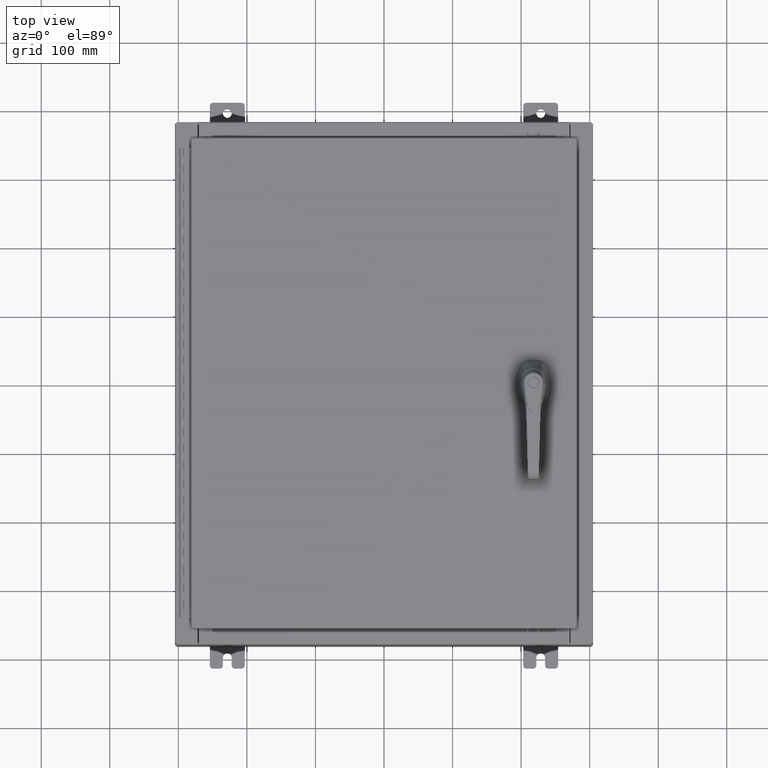
[diagram: clean part render]
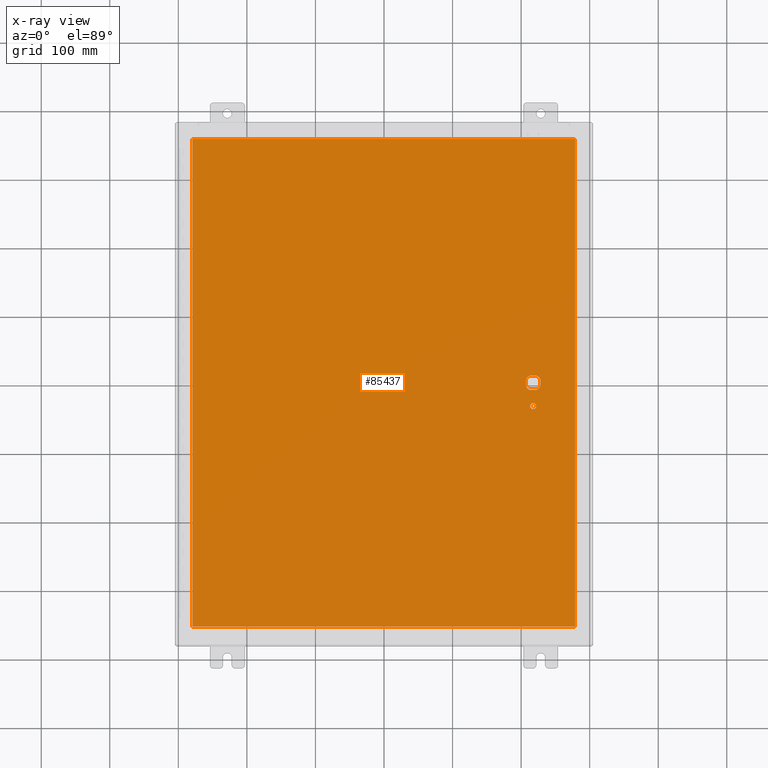
[diagram: x-ray — body ghosted, one internal face saturated and labeled with its STEP entity id]
A machine part, top view, then the same camera in x-ray: the body is ghosted and one INTERNAL B-rep face — a face not visible from any outside direction — is saturated and labeled: STEP entity #85437.
In plain terms, the highlighted planar face has unit normal (0, 0, -1).
Its self-contained STEP definition (entity closure, byte-faithful):
#2277 = VERTEX_POINT ( 'NONE', #56101 ) ;
#3401 = CARTESIAN_POINT ( 'NONE',  ( 8.749500000000001200, -1.338000000000000100, -0.07470000000000003000 ) ) ;
#3745 = EDGE_CURVE ( 'NONE', #12267, #58571, #61954, .T. ) ;
#4332 = ORIENTED_EDGE ( 'NONE', *, *, #52031, .T. ) ;
#5399 = ORIENTED_EDGE ( 'NONE', *, *, #103116, .T. ) ;
#5454 = DIRECTION ( 'NONE',  ( -1.000000000000000000, 0.0000000000000000000, 0.0000000000000000000 ) ) ;
#5719 = LINE ( 'NONE', #108214, #27217 ) ;
#5802 = ORIENTED_EDGE ( 'NONE', *, *, #69945, .F. ) ;
#6879 = DIRECTION ( 'NONE',  ( -1.000000000000000000, 0.0000000000000000000, 0.0000000000000000000 ) ) ;
#7244 = CARTESIAN_POINT ( 'NONE',  ( 10.99030000000000000, 14.00629999999999800, -0.07470000000000000300 ) ) ;
#9408 = CARTESIAN_POINT ( 'NONE',  ( 8.175000000000073500, 0.2002273707563080300, -0.07470000000000003000 ) ) ;
#11026 = CARTESIAN_POINT ( 'NONE',  ( 8.778227370756310300, -0.4029999999999252000, -0.07470000000000003000 ) ) ;
#12267 = VERTEX_POINT ( 'NONE', #7244 ) ;
#13652 = CIRCLE ( 'NONE', #31750, 0.4499999999999156900 ) ;
#16872 = CARTESIAN_POINT ( 'NONE',  ( 8.577999999999999400, -1.338000000000000100, -0.07470000000000003000 ) ) ;
#19948 = CARTESIAN_POINT ( 'NONE',  ( 10.99030000000000000, 14.00629999999999800, -0.07470000000000019700 ) ) ;
#19972 = VERTEX_POINT ( 'NONE', #101440 ) ;
#21178 = ORIENTED_EDGE ( 'NONE', *, *, #101993, .T. ) ;
#21902 = AXIS2_PLACEMENT_3D ( 'NONE', #29216, #93185, #38366 ) ;
#23083 = CARTESIAN_POINT ( 'NONE',  ( -10.99030000000000000, -14.00629999999999600, -0.07470000000000000300 ) ) ;
#25324 = CARTESIAN_POINT ( 'NONE',  ( -10.99029999999999600, -14.00629999999999800, -0.07470000000000019700 ) ) ;
#25375 = EDGE_LOOP ( 'NONE', ( #105711, #87907 ) ) ;
#25631 = CARTESIAN_POINT ( 'NONE',  ( 8.577999999999999400, 0.0000000000000000000, -0.07470000000000003000 ) ) ;
#25850 = AXIS2_PLACEMENT_3D ( 'NONE', #116488, #61571, #6879 ) ;
#26058 = DIRECTION ( 'NONE',  ( -1.000000000000000000, 0.0000000000000000000, 0.0000000000000000000 ) ) ;
#27217 = VECTOR ( 'NONE', #44517, 39.37007874015748100 ) ;
#27899 = VERTEX_POINT ( 'NONE', #9408 ) ;
#29216 = CARTESIAN_POINT ( 'NONE',  ( 8.577999999999999400, 0.0000000000000000000, -0.07470000000000003000 ) ) ;
#30165 = CARTESIAN_POINT ( 'NONE',  ( 8.980999999999925300, 2.450686610769032800E-014, -0.07470000000000003000 ) ) ;
#31529 = ORIENTED_EDGE ( 'NONE', *, *, #35678, .T. ) ;
#31750 = AXIS2_PLACEMENT_3D ( 'NONE', #25631, #89579, #34784 ) ;
#32432 = EDGE_CURVE ( 'NONE', #109739, #88998, #101569, .T. ) ;
#33659 = ORIENTED_EDGE ( 'NONE', *, *, #3745, .F. ) ;
#34560 = CARTESIAN_POINT ( 'NONE',  ( 8.577999999999999400, 0.0000000000000000000, -0.07470000000000003000 ) ) ;
#34784 = DIRECTION ( 'NONE',  ( -1.000000000000000000, 1.776356839400251300E-015, 0.0000000000000000000 ) ) ;
#35678 = EDGE_CURVE ( 'NONE', #115140, #64127, #94003, .T. ) ;
#35860 = VERTEX_POINT ( 'NONE', #117476 ) ;
#36461 = ORIENTED_EDGE ( 'NONE', *, *, #89222, .F. ) ;
#38366 = DIRECTION ( 'NONE',  ( -1.000000000000000000, 8.881784197001256300E-016, 0.0000000000000000000 ) ) ;
#38738 = CIRCLE ( 'NONE', #21902, 0.4499999999999156900 ) ;
#40222 = LINE ( 'NONE', #48954, #61649 ) ;
#41843 = CARTESIAN_POINT ( 'NONE',  ( 0.0000000000000000000, 0.4029999999999252000, -0.07470000000000003000 ) ) ;
#42219 = LINE ( 'NONE', #98125, #63644 ) ;
#43678 = ORIENTED_EDGE ( 'NONE', *, *, #80973, .T. ) ;
#43716 = DIRECTION ( 'NONE',  ( -1.000000000000000000, 0.0000000000000000000, 0.0000000000000000000 ) ) ;
#44517 = DIRECTION ( 'NONE',  ( 1.000000000000000000, 0.0000000000000000000, 0.0000000000000000000 ) ) ;
#44654 = EDGE_CURVE ( 'NONE', #82793, #35860, #13652, .T. ) ;
#47422 = DIRECTION ( 'NONE',  ( -1.000000000000000000, -0.0000000000000000000, -0.0000000000000000000 ) ) ;
#47454 = CARTESIAN_POINT ( 'NONE',  ( 8.778227370756310300, 0.4029999999999250300, -0.07470000000000003000 ) ) ;
#48954 = CARTESIAN_POINT ( 'NONE',  ( 8.175000000000073500, 0.0000000000000000000, -0.07470000000000003000 ) ) ;
#49635 = FACE_OUTER_BOUND ( 'NONE', #88080, .T. ) ;
#51408 = PLANE ( 'NONE',  #106821 ) ;
#52031 = EDGE_CURVE ( 'NONE', #2277, #115140, #54540, .T. ) ;
#54540 = CIRCLE ( 'NONE', #55908, 0.4499999999999156900 ) ;
#54885 = VECTOR ( 'NONE', #47422, 39.37007874015748100 ) ;
#55405 = FACE_BOUND ( 'NONE', #115377, .T. ) ;
#55908 = AXIS2_PLACEMENT_3D ( 'NONE', #34560, #98570, #43716 ) ;
#56101 = CARTESIAN_POINT ( 'NONE',  ( 8.980999999999925300, 0.2002273707563080300, -0.07470000000000003000 ) ) ;
#56416 = VECTOR ( 'NONE', #107695, 39.37007874015748100 ) ;
#57759 = CARTESIAN_POINT ( 'NONE',  ( 8.406499999999999400, -1.338000000000000100, -0.07470000000000003000 ) ) ;
#58141 = DIRECTION ( 'NONE',  ( 0.0000000000000000000, -1.000000000000000000, 0.0000000000000000000 ) ) ;
#58571 = VERTEX_POINT ( 'NONE', #96648 ) ;
#60173 = DIRECTION ( 'NONE',  ( -0.0000000000000000000, -0.0000000000000000000, 1.000000000000000000 ) ) ;
#61571 = DIRECTION ( 'NONE',  ( -0.0000000000000000000, -0.0000000000000000000, 1.000000000000000000 ) ) ;
#61649 = VECTOR ( 'NONE', #58141, 39.37007874015748100 ) ;
#61846 = DIRECTION ( 'NONE',  ( -1.000000000000000000, 0.0000000000000000000, -0.0000000000000000000 ) ) ;
#61954 = LINE ( 'NONE', #19948, #54885 ) ;
#63644 = VECTOR ( 'NONE', #107346, 39.37007874015748100 ) ;
#64127 = VERTEX_POINT ( 'NONE', #89343 ) ;
#67120 = AXIS2_PLACEMENT_3D ( 'NONE', #16872, #80818, #26058 ) ;
#69597 = VECTOR ( 'NONE', #115515, 39.37007874015748100 ) ;
#69826 = CARTESIAN_POINT ( 'NONE',  ( 8.377772629243690300, -0.4029999999999250300, -0.07470000000000003000 ) ) ;
#69945 = EDGE_CURVE ( 'NONE', #72745, #79838, #80804, .T. ) ;
#72745 = VERTEX_POINT ( 'NONE', #23083 ) ;
#72854 = VECTOR ( 'NONE', #113563, 39.37007874015748100 ) ;
#74000 = FACE_BOUND ( 'NONE', #25375, .T. ) ;
#75442 = EDGE_CURVE ( 'NONE', #88998, #109739, #114471, .T. ) ;
#75781 = EDGE_CURVE ( 'NONE', #79838, #12267, #97230, .T. ) ;
#78060 = ORIENTED_EDGE ( 'NONE', *, *, #44654, .T. ) ;
#78352 = EDGE_CURVE ( 'NONE', #64127, #27899, #101396, .T. ) ;
#79542 = VECTOR ( 'NONE', #93349, 39.37007874015748100 ) ;
#79838 = VERTEX_POINT ( 'NONE', #98269 ) ;
#80804 = LINE ( 'NONE', #25324, #56416 ) ;
#80818 = DIRECTION ( 'NONE',  ( -0.0000000000000000000, -0.0000000000000000000, 1.000000000000000000 ) ) ;
#80973 = EDGE_CURVE ( 'NONE', #27899, #19972, #40222, .T. ) ;
#81933 = AXIS2_PLACEMENT_3D ( 'NONE', #115066, #60173, #5454 ) ;
#82793 = VERTEX_POINT ( 'NONE', #11026 ) ;
#83908 = ORIENTED_EDGE ( 'NONE', *, *, #86980, .F. ) ;
#85437 = ADVANCED_FACE ( 'NONE', ( #74000, #49635, #55405 ), #51408, .T. ) ;
#86980 = EDGE_CURVE ( 'NONE', #2277, #35860, #106770, .T. ) ;
#87907 = ORIENTED_EDGE ( 'NONE', *, *, #32432, .T. ) ;
#88080 = EDGE_LOOP ( 'NONE', ( #118098, #5802, #36461, #33659 ) ) ;
#88998 = VERTEX_POINT ( 'NONE', #3401 ) ;
#89222 = EDGE_CURVE ( 'NONE', #58571, #72745, #42219, .T. ) ;
#89343 = CARTESIAN_POINT ( 'NONE',  ( 8.377772629243690300, 0.4029999999999252000, -0.07470000000000003000 ) ) ;
#89579 = DIRECTION ( 'NONE',  ( -0.0000000000000000000, -0.0000000000000000000, 1.000000000000000000 ) ) ;
#93185 = DIRECTION ( 'NONE',  ( -0.0000000000000000000, -0.0000000000000000000, 1.000000000000000000 ) ) ;
#93349 = DIRECTION ( 'NONE',  ( 2.728745808672812900E-015, -1.000000000000000000, 0.0000000000000000000 ) ) ;
#94003 = LINE ( 'NONE', #41843, #69597 ) ;
#96648 = CARTESIAN_POINT ( 'NONE',  ( -10.99030000000000000, 14.00629999999999800, -0.07470000000000000300 ) ) ;
#97230 = LINE ( 'NONE', #104351, #72854 ) ;
#98125 = CARTESIAN_POINT ( 'NONE',  ( -10.99030000000000000, 14.00630000000000100, -0.07470000000000019700 ) ) ;
#98269 = CARTESIAN_POINT ( 'NONE',  ( 10.99030000000000000, -14.00629999999999800, -0.07470000000000000300 ) ) ;
#98323 = CARTESIAN_POINT ( 'NONE',  ( 0.0000000000000000000, 0.0000000000000000000, -0.07470000000000000300 ) ) ;
#98570 = DIRECTION ( 'NONE',  ( -0.0000000000000000000, -0.0000000000000000000, 1.000000000000000000 ) ) ;
#99251 = ORIENTED_EDGE ( 'NONE', *, *, #78352, .T. ) ;
#101396 = CIRCLE ( 'NONE', #81933, 0.4499999999999156900 ) ;
#101440 = CARTESIAN_POINT ( 'NONE',  ( 8.175000000000073500, -0.2002273707563079800, -0.07470000000000003000 ) ) ;
#101569 = CIRCLE ( 'NONE', #25850, 0.1715000000000011500 ) ;
#101993 = EDGE_CURVE ( 'NONE', #19972, #111350, #38738, .T. ) ;
#103116 = EDGE_CURVE ( 'NONE', #111350, #82793, #5719, .T. ) ;
#104351 = CARTESIAN_POINT ( 'NONE',  ( 10.99030000000000000, -14.00629999999999800, -0.07470000000000019700 ) ) ;
#105711 = ORIENTED_EDGE ( 'NONE', *, *, #75442, .T. ) ;
#106770 = LINE ( 'NONE', #30165, #79542 ) ;
#106821 = AXIS2_PLACEMENT_3D ( 'NONE', #98323, #116761, #61846 ) ;
#107346 = DIRECTION ( 'NONE',  ( 0.0000000000000000000, -1.000000000000000000, 0.0000000000000000000 ) ) ;
#107695 = DIRECTION ( 'NONE',  ( 1.000000000000000000, -0.0000000000000000000, -0.0000000000000000000 ) ) ;
#108214 = CARTESIAN_POINT ( 'NONE',  ( 0.0000000000000000000, -0.4029999999999252000, -0.07470000000000003000 ) ) ;
#109739 = VERTEX_POINT ( 'NONE', #57759 ) ;
#111350 = VERTEX_POINT ( 'NONE', #69826 ) ;
#113563 = DIRECTION ( 'NONE',  ( 0.0000000000000000000, 1.000000000000000000, 0.0000000000000000000 ) ) ;
#114471 = CIRCLE ( 'NONE', #67120, 0.1715000000000011500 ) ;
#115066 = CARTESIAN_POINT ( 'NONE',  ( 8.577999999999999400, 0.0000000000000000000, -0.07470000000000003000 ) ) ;
#115140 = VERTEX_POINT ( 'NONE', #47454 ) ;
#115377 = EDGE_LOOP ( 'NONE', ( #78060, #83908, #4332, #31529, #99251, #43678, #21178, #5399 ) ) ;
#115515 = DIRECTION ( 'NONE',  ( -1.000000000000000000, 0.0000000000000000000, 0.0000000000000000000 ) ) ;
#116488 = CARTESIAN_POINT ( 'NONE',  ( 8.577999999999999400, -1.338000000000000100, -0.07470000000000003000 ) ) ;
#116761 = DIRECTION ( 'NONE',  ( 0.0000000000000000000, 0.0000000000000000000, -1.000000000000000000 ) ) ;
#117476 = CARTESIAN_POINT ( 'NONE',  ( 8.980999999999925300, -0.2002273707563075900, -0.07470000000000003000 ) ) ;
#118098 = ORIENTED_EDGE ( 'NONE', *, *, #75781, .F. ) ;